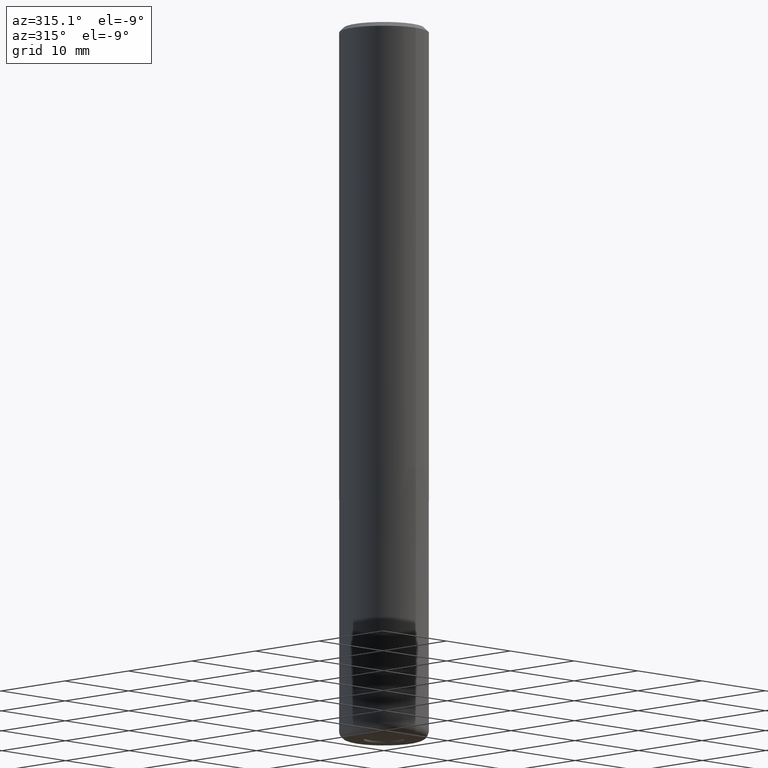
[diagram: clean part render]
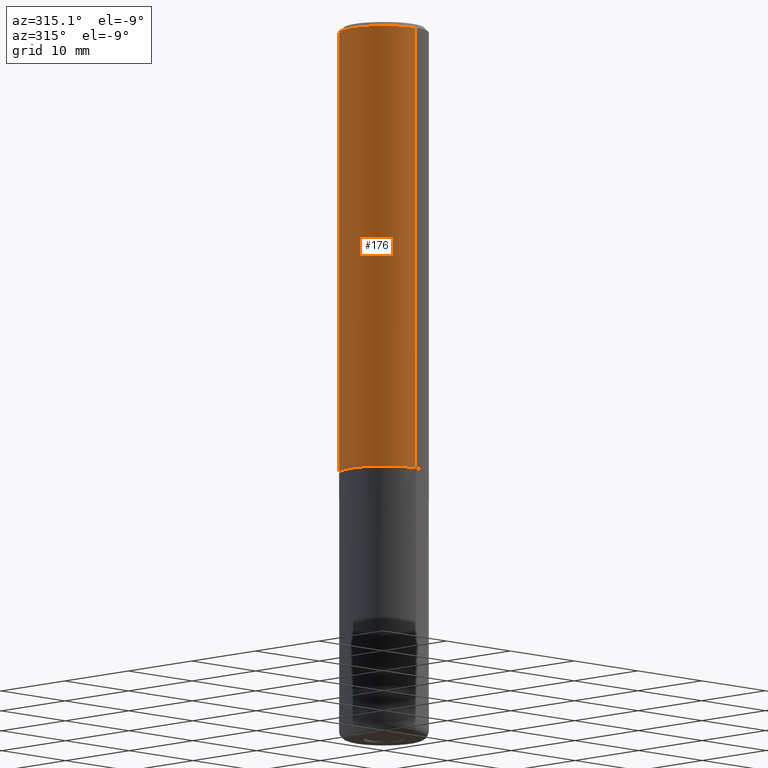
[diagram: same view with one face highlighted and labeled with its STEP entity id]
A machine part, auxiliary view. The second image highlights one B-rep face of the part: STEP entity #176.
In plain terms, the highlighted cylindrical surface (partial cylindrical patch) has radius 5 mm, axis along (-0, -0, 1).
Its self-contained STEP definition (entity closure, byte-faithful):
#114=EDGE_CURVE('',#224,#120,#275,.T.);
#120=VERTEX_POINT('',#283);
#128=EDGE_CURVE('',#202,#224,#292,.T.);
#176=ADVANCED_FACE('',(#346),#347,.T.);
#202=VERTEX_POINT('',#378);
#218=VERTEX_POINT('',#397);
#224=VERTEX_POINT('',#403);
#226=EDGE_CURVE('',#218,#202,#405,.T.);
#238=EDGE_CURVE('',#218,#120,#418,.T.);
#275=LINE('',#451,#452);
#283=CARTESIAN_POINT('',(0.0,5.0,-50.0));
#292=CIRCLE('',#474,5.0);
#346=FACE_OUTER_BOUND('',#538,.T.);
#347=CYLINDRICAL_SURFACE('',#539,5.0);
#378=CARTESIAN_POINT('',(6.12303176911189E-016,-5.0,-0.5));
#397=CARTESIAN_POINT('',(6.12303176911189E-016,-5.0,-50.0));
#403=CARTESIAN_POINT('',(0.0,5.0,-0.5));
#405=LINE('',#610,#611);
#418=CIRCLE('',#629,5.0);
#451=CARTESIAN_POINT('',(-6.12303176911189E-016,5.0,-25.25));
#452=VECTOR('',#650,1.0);
#474=AXIS2_PLACEMENT_3D('',#674,#675,#676);
#538=EDGE_LOOP('',(#743,#744,#745,#746));
#539=AXIS2_PLACEMENT_3D('',#747,#748,#749);
#610=CARTESIAN_POINT('',(6.12303176911189E-016,-5.0,-25.25));
#611=VECTOR('',#822,1.0);
#629=AXIS2_PLACEMENT_3D('',#838,#839,#840);
#650=DIRECTION('',(0.0,0.0,-1.0));
#674=CARTESIAN_POINT('',(0.0,0.0,-0.5));
#675=DIRECTION('',(0.0,0.0,-1.0));
#676=DIRECTION('',(0.0,1.0,0.0));
#743=ORIENTED_EDGE('',*,*,#114,.T.);
#744=ORIENTED_EDGE('',*,*,#238,.F.);
#745=ORIENTED_EDGE('',*,*,#226,.T.);
#746=ORIENTED_EDGE('',*,*,#128,.T.);
#747=CARTESIAN_POINT('',(0.0,0.0,-25.25));
#748=DIRECTION('',(-0.0,-0.0,1.0));
#749=DIRECTION('',(0.0,1.0,0.0));
#822=DIRECTION('',(-0.0,-0.0,1.0));
#838=CARTESIAN_POINT('',(0.0,0.0,-50.0));
#839=DIRECTION('',(0.0,0.0,-1.0));
#840=DIRECTION('',(0.0,1.0,0.0));